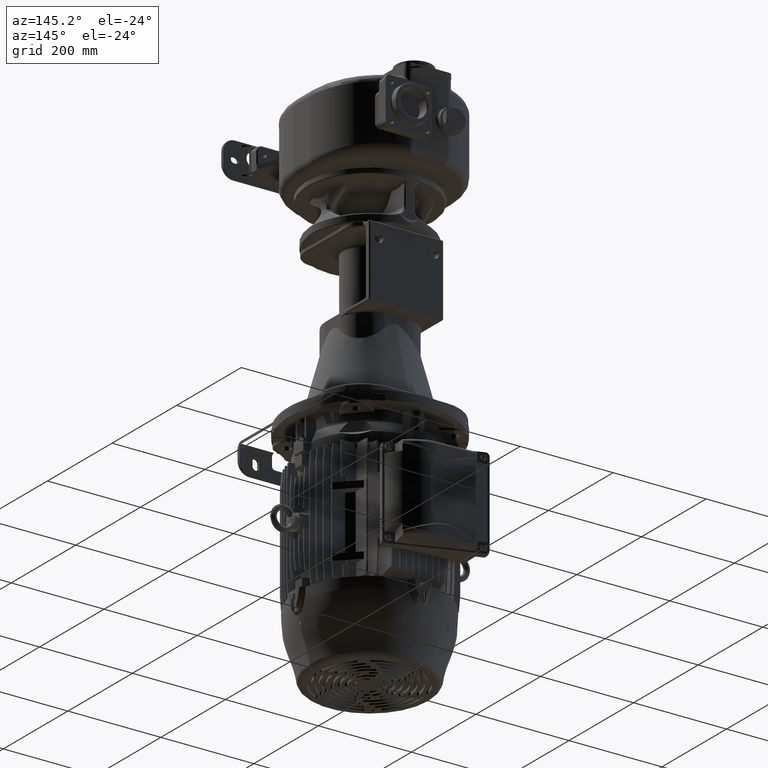
[diagram: clean part render]
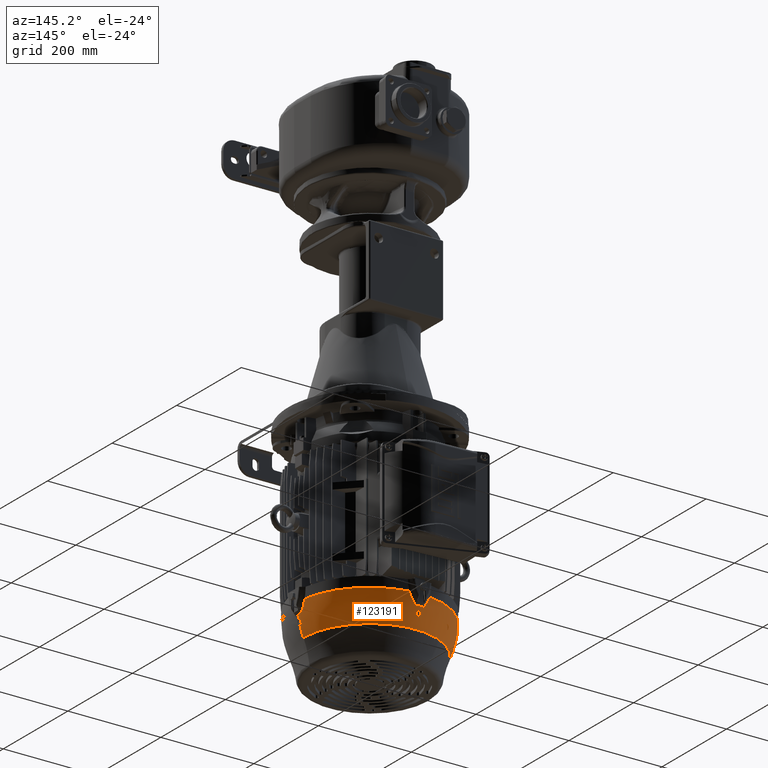
[diagram: same view with one face highlighted and labeled with its STEP entity id]
A machine part, auxiliary view. The second image highlights one B-rep face of the part: STEP entity #123191.
In plain terms, the highlighted face is a freeform B-spline surface patch.
Its self-contained STEP definition (entity closure, byte-faithful):
#34206=CARTESIAN_POINT('',(2.309660939871E1,3.146829410924E2,
-9.265578225722E2));
#34216=CARTESIAN_POINT('',(1.555463572637E2,1.822331932274E2,
-9.265578225722E2));
#34579=CARTESIAN_POINT('',(1.546830150154E2,1.696872819357E2,
-9.493206795141E2));
#34580=CARTESIAN_POINT('',(1.547247066633E2,1.699800036518E2,
-9.489432010325E2));
#34581=CARTESIAN_POINT('',(1.548053359435E2,1.705598074411E2,
-9.481820268905E2));
#34582=CARTESIAN_POINT('',(1.549181215736E2,1.714138280103E2,
-9.470197080510E2));
#34583=CARTESIAN_POINT('',(1.550221794262E2,1.722477758490E2,
-9.458425125548E2));
#34584=CARTESIAN_POINT('',(1.551176398217E2,1.730623417835E2,
-9.446494824438E2));
#34585=CARTESIAN_POINT('',(1.552044721590E2,1.738571149180E2,
-9.434410885665E2));
#34586=CARTESIAN_POINT('',(1.552826334501E2,1.746314082134E2,
-9.422183095364E2));
#34587=CARTESIAN_POINT('',(1.553521457711E2,1.753851458466E2,
-9.409812168783E2));
#34588=CARTESIAN_POINT('',(1.554130004853E2,1.761179319046E2,
-9.397303890820E2));
#34589=CARTESIAN_POINT('',(1.554652082723E2,1.768295545493E2,
-9.384661274752E2));
#34590=CARTESIAN_POINT('',(1.555087732231E2,1.775197285461E2,
-9.371888721492E2));
#34591=CARTESIAN_POINT('',(1.555437000312E2,1.781880977255E2,
-9.358992175637E2));
#34592=CARTESIAN_POINT('',(1.555700002955E2,1.788343339637E2,
-9.345977650893E2));
#34593=CARTESIAN_POINT('',(1.555876947189E2,1.794582265187E2,
-9.332849130819E2));
#34594=CARTESIAN_POINT('',(1.555968054673E2,1.800596235636E2,
-9.319609422182E2));
#34595=CARTESIAN_POINT('',(1.555973520208E2,1.806384384518E2,
-9.306259666704E2));
#34596=CARTESIAN_POINT('',(1.555893481479E2,1.811945056558E2,
-9.292802582639E2));
#34597=CARTESIAN_POINT('',(1.555728113860E2,1.817275174348E2,
-9.279244172069E2));
#34598=CARTESIAN_POINT('',(1.555561170828E2,1.820672417858E2,
-9.270143993035E2));
#34599=CARTESIAN_POINT('',(1.555463572637E2,1.822331932274E2,
-9.265578225722E2));
#34606=CARTESIAN_POINT('',(-2.278002494873E1,1.6E2,-9.210608902496E2));
#34607=DIRECTION('',(0.E0,1.E0,0.E0));
#34608=DIRECTION('',(9.660341785750E-1,0.E0,-2.584143297591E-1));
#34609=AXIS2_PLACEMENT_3D('',#34606,#34607,#34608);
#34611=CARTESIAN_POINT('',(1.511151791804E2,1.649963658915E2,
-9.672297882218E2));
#34612=CARTESIAN_POINT('',(1.511143174761E2,1.647595246944E2,
-9.672626953797E2));
#34613=CARTESIAN_POINT('',(1.511127171724E2,1.642854471716E2,
-9.673238085126E2));
#34614=CARTESIAN_POINT('',(1.511106852824E2,1.635730555316E2,
-9.674014032616E2));
#34615=CARTESIAN_POINT('',(1.511090225051E2,1.628596674699E2,
-9.674649021658E2));
#34616=CARTESIAN_POINT('',(1.511077289848E2,1.621454618143E2,
-9.675142997141E2));
#34617=CARTESIAN_POINT('',(1.511068049165E2,1.614306517377E2,
-9.675495884574E2));
#34618=CARTESIAN_POINT('',(1.511062504220E2,1.607154167584E2,
-9.675707637471E2));
#34619=CARTESIAN_POINT('',(1.511061271948E2,1.602384985348E2,
-9.675754696063E2));
#34620=CARTESIAN_POINT('',(1.511061271948E2,1.6E2,-9.675754696063E2));
#34622=CARTESIAN_POINT('',(1.525524052069E2,1.643952949745E2,
-9.615109804543E2));
#34623=CARTESIAN_POINT('',(1.524032581129E2,1.644623541237E2,
-9.621490056400E2));
#34624=CARTESIAN_POINT('',(1.520979329580E2,1.645962902571E2,
-9.634233228263E2));
#34625=CARTESIAN_POINT('',(1.516188204007E2,1.647966626756E2,
-9.653297390430E2));
#34626=CARTESIAN_POINT('',(1.512853991745E2,1.649298604976E2,
-9.665970316653E2));
#34627=CARTESIAN_POINT('',(1.511151791804E2,1.649963658915E2,
-9.672297882218E2));
#34629=CARTESIAN_POINT('',(-2.278002494873E1,1.6E2,-9.210608902496E2));
#34630=DIRECTION('',(0.E0,1.E0,0.E0));
#34631=DIRECTION('',(9.877699480425E-1,0.E0,-1.559183431931E-1));
#34632=AXIS2_PLACEMENT_3D('',#34629,#34630,#34631);
#34634=CARTESIAN_POINT('',(1.546830150154E2,1.696872819357E2,
-9.493206795141E2));
#34635=CARTESIAN_POINT('',(1.547930415755E2,1.681015420024E2,
-9.492569071972E2));
#34636=CARTESIAN_POINT('',(1.549188863404E2,1.656961412464E2,
-9.491839679208E2));
#34637=CARTESIAN_POINT('',(1.550041300395E2,1.624628042911E2,
-9.491345606062E2));
#34638=CARTESIAN_POINT('',(1.550185657253E2,1.608205831029E2,
-9.491261913332E2));
#34639=CARTESIAN_POINT('',(1.550185658163E2,1.6E2,-9.491261912805E2));
#34641=CARTESIAN_POINT('',(8.634161712655E-1,1.6E2,-9.265578226274E2));
#34642=DIRECTION('',(0.E0,0.E0,-1.E0));
#34643=DIRECTION('',(1.422718546429E-1,9.898276210414E-1,0.E0));
#34644=AXIS2_PLACEMENT_3D('',#34641,#34642,#34643);
#34646=CARTESIAN_POINT('',(1.055069860933E1,3.138195987115E2,
-9.493206801506E2));
#34647=CARTESIAN_POINT('',(1.118748150288E1,3.139106108025E2,
-9.484974989449E2));
#34648=CARTESIAN_POINT('',(1.246860320895E1,3.140838785018E2,
-9.467771751398E2));
#34649=CARTESIAN_POINT('',(1.492184348512E1,3.143747379244E2,
-9.432076194446E2));
#34650=CARTESIAN_POINT('',(1.887248902558E1,3.147295612891E2,
-9.366735491059E2));
#34651=CARTESIAN_POINT('',(2.159233478713E1,3.147711308969E2,
-9.307055073583E2));
#34652=CARTESIAN_POINT('',(2.309660939871E1,3.146829410924E2,
-9.265578225722E2));
#34654=CARTESIAN_POINT('',(-8.823866266774E0,3.138195987111E2,
-9.493206801505E2));
#34655=CARTESIAN_POINT('',(-7.238125625581E0,3.139296253447E2,
-9.492569077911E2));
#34656=CARTESIAN_POINT('',(-4.832726176586E0,3.140554700929E2,
-9.491839681437E2));
#34657=CARTESIAN_POINT('',(-1.598456657445E0,3.141407385631E2,
-9.491345455199E2));
#34658=CARTESIAN_POINT('',(8.662833872833E-1,3.141623793095E2,
-9.491220024001E2));
#34659=CARTESIAN_POINT('',(3.330651630874E0,3.141406403570E2,
-9.491346024410E2));
#34660=CARTESIAN_POINT('',(6.563476935507E0,3.140552939266E2,
-9.491840702511E2));
#34661=CARTESIAN_POINT('',(8.966773073551E0,3.139294994569E2,
-9.492569807570E2));
#34662=CARTESIAN_POINT('',(1.055069860933E1,3.138195987115E2,
-9.493206801506E2));
#34664=CARTESIAN_POINT('',(8.634161712655E-1,1.6E2,-9.265578226274E2));
#34665=DIRECTION('',(0.E0,0.E0,-1.E0));
#34666=DIRECTION('',(-1.E0,0.E0,0.E0));
#34667=AXIS2_PLACEMENT_3D('',#34664,#34665,#34666);
#34669=CARTESIAN_POINT('',(-1.493883468379E2,1.649963658915E2,
-9.672297882218E2));
#34670=CARTESIAN_POINT('',(-1.495585668320E2,1.649298604976E2,
-9.665970316653E2));
#34671=CARTESIAN_POINT('',(-1.498919880581E2,1.647966626756E2,
-9.653297390430E2));
#34672=CARTESIAN_POINT('',(-1.503711006155E2,1.645962902571E2,
-9.634233228263E2));
#34673=CARTESIAN_POINT('',(-1.506764257704E2,1.644623541237E2,
-9.621490056400E2));
#34674=CARTESIAN_POINT('',(-1.508255728644E2,1.643952949745E2,
-9.615109804543E2));
#34676=CARTESIAN_POINT('',(-1.493792948522E2,1.6E2,-9.675754696063E2));
#34677=CARTESIAN_POINT('',(-1.493792948522E2,1.602384985348E2,
-9.675754696063E2));
#34678=CARTESIAN_POINT('',(-1.493794180795E2,1.607154167584E2,
-9.675707637471E2));
#34679=CARTESIAN_POINT('',(-1.493799725740E2,1.614306517377E2,
-9.675495884574E2));
#34680=CARTESIAN_POINT('',(-1.493808966422E2,1.621454618143E2,
-9.675142997141E2));
#34681=CARTESIAN_POINT('',(-1.493821901626E2,1.628596674700E2,
-9.674649021658E2));
#34682=CARTESIAN_POINT('',(-1.493838529399E2,1.635730555316E2,
-9.674014032616E2));
#34683=CARTESIAN_POINT('',(-1.493858848299E2,1.642854471716E2,
-9.673238085126E2));
#34684=CARTESIAN_POINT('',(-1.493874851336E2,1.647595246944E2,
-9.672626953797E2));
#34685=CARTESIAN_POINT('',(-1.493883468379E2,1.649963658915E2,
-9.672297882218E2));
#34687=CARTESIAN_POINT('',(-6.993548746178E1,2.926200275243E2,
-9.672297764429E2));
#34688=CARTESIAN_POINT('',(-7.007819278951E1,2.927341896109E2,
-9.665970198696E2));
#34689=CARTESIAN_POINT('',(-7.036025333233E1,2.929563407879E2,
-9.653297445475E2));
#34690=CARTESIAN_POINT('',(-7.077333834794E1,2.932710787008E2,
-9.634233212535E2));
#34691=CARTESIAN_POINT('',(-7.104199276773E1,2.934685298688E2,
-9.621490056400E2));
#34692=CARTESIAN_POINT('',(-7.117464124151E1,2.935641654665E2,
-9.615109804543E2));
#34694=CARTESIAN_POINT('',(-7.858944509325E1,2.876236610518E2,
-9.672297867060E2));
#34695=CARTESIAN_POINT('',(-7.836808944520E1,2.877503892286E2,
-9.672652257331E2));
#34696=CARTESIAN_POINT('',(-7.792505854011E1,2.880041946280E2,
-9.673306527992E2));
#34697=CARTESIAN_POINT('',(-7.725945479337E1,2.883860074919E2,
-9.674124654097E2));
#34698=CARTESIAN_POINT('',(-7.659309633859E1,2.887687502657E2,
-9.674779293692E2));
#34699=CARTESIAN_POINT('',(-7.592617901642E1,2.891523103153E2,
-9.675270367402E2));
#34700=CARTESIAN_POINT('',(-7.525892807141E1,2.895365577946E2,
-9.675597792242E2));
#34701=CARTESIAN_POINT('',(-7.459156140823E1,2.899213670618E2,
-9.675761517930E2));
#34702=CARTESIAN_POINT('',(-7.392429929615E1,2.903066110233E2,
-9.675761517834E2));
#34703=CARTESIAN_POINT('',(-7.325736134102E1,2.906921628812E2,
-9.675597792444E2));
#34704=CARTESIAN_POINT('',(-7.259096778167E1,2.910778954350E2,
-9.675270366394E2));
#34705=CARTESIAN_POINT('',(-7.192533623569E1,2.914636827614E2,
-9.674779296911E2));
#34706=CARTESIAN_POINT('',(-7.126069231392E1,2.918493948368E2,
-9.674124641123E2));
#34707=CARTESIAN_POINT('',(-7.059722947269E1,2.922349179240E2,
-9.673306574822E2));
#34708=CARTESIAN_POINT('',(-7.015591514384E1,2.924916919763E2,
-9.672652154777E2));
#34709=CARTESIAN_POINT('',(-6.993548746178E1,2.926200275243E2,
-9.672297764429E2));
#34711=CARTESIAN_POINT('',(-7.878751545158E1,2.891688704920E2,
-9.615109804543E2));
#34712=CARTESIAN_POINT('',(-7.877101683139E1,2.890061757451E2,
-9.621490056400E2));
#34713=CARTESIAN_POINT('',(-7.873434634350E1,2.886747883727E2,
-9.634233226239E2));
#34714=CARTESIAN_POINT('',(-7.866831768931E1,2.881596783607E2,
-9.653297397514E2));
#34715=CARTESIAN_POINT('',(-7.861695972539E1,2.878043285811E2,
-9.665970301474E2));
#34716=CARTESIAN_POINT('',(-7.858944509325E1,2.876236610518E2,
-9.672297867060E2));
#34718=CARTESIAN_POINT('',(5.859782062794E0,3.102517630091E2,
-9.672297882218E2));
#34719=CARTESIAN_POINT('',(5.793276668821E0,3.104219830033E2,
-9.665970316653E2));
#34720=CARTESIAN_POINT('',(5.660078846897E0,3.107554042294E2,
-9.653297390430E2));
#34721=CARTESIAN_POINT('',(5.459706428335E0,3.112345167867E2,
-9.634233228263E2));
#34722=CARTESIAN_POINT('',(5.325770294990E0,3.115398419416E2,
-9.621490056400E2));
#34723=CARTESIAN_POINT('',(5.258711145761E0,3.116889890356E2,
-9.615109804543E2));
#34725=CARTESIAN_POINT('',(-4.132949720263E0,3.102517630091E2,
-9.672297882218E2));
#34726=CARTESIAN_POINT('',(-3.877886015530E0,3.102508350055E2,
-9.672652272489E2));
#34727=CARTESIAN_POINT('',(-3.367306949012E0,3.102491217953E2,
-9.673306521101E2));
#34728=CARTESIAN_POINT('',(-2.599970908012E0,3.102469794335E2,
-9.674124656041E2));
#34729=CARTESIAN_POINT('',(-1.831516148803E0,3.102452652057E2,
-9.674779293235E2));
#34730=CARTESIAN_POINT('',(-1.062168814988E0,3.102439792823E2,
-9.675270367553E2));
#34731=CARTESIAN_POINT('',(-2.921888370853E-1,3.102431218907E2,
-9.675597792210E2));
#34732=CARTESIAN_POINT('',(4.781722363111E-1,3.102426931599E2,
-9.675761517912E2));
#34733=CARTESIAN_POINT('',(1.248660106307E0,3.102426931599E2,
-9.675761517912E2));
#34734=CARTESIAN_POINT('',(2.019021179702E0,3.102431218907E2,
-9.675597792210E2));
#34735=CARTESIAN_POINT('',(2.789001157600E0,3.102439792823E2,
-9.675270367553E2));
#34736=CARTESIAN_POINT('',(3.558348491409E0,3.102452652057E2,
-9.674779293235E2));
#34737=CARTESIAN_POINT('',(4.326803250605E0,3.102469794335E2,
-9.674124656041E2));
#34738=CARTESIAN_POINT('',(5.094139291582E0,3.102491217953E2,
-9.673306521101E2));
#34739=CARTESIAN_POINT('',(5.604718358075E0,3.102508350055E2,
-9.672652272489E2));
#34740=CARTESIAN_POINT('',(5.859782062794E0,3.102517630091E2,
-9.672297882218E2));
#34742=CARTESIAN_POINT('',(-3.531878803230E0,3.116889890356E2,
-9.615109804543E2));
#34743=CARTESIAN_POINT('',(-3.598937952460E0,3.115398419416E2,
-9.621490056400E2));
#34744=CARTESIAN_POINT('',(-3.732874085804E0,3.112345167867E2,
-9.634233228263E2));
#34745=CARTESIAN_POINT('',(-3.933246504367E0,3.107554042294E2,
-9.653297390430E2));
#34746=CARTESIAN_POINT('',(-4.066444326290E0,3.104219830033E2,
-9.665970316653E2));
#34747=CARTESIAN_POINT('',(-4.132949720263E0,3.102517630091E2,
-9.672297882218E2));
#34754=CARTESIAN_POINT('',(8.634161712655E-1,1.6E2,-9.903489229696E2));
#34755=DIRECTION('',(0.E0,0.E0,-1.E0));
#34756=DIRECTION('',(-1.E0,0.E0,0.E0));
#34757=AXIS2_PLACEMENT_3D('',#34754,#34755,#34756);
#34769=CARTESIAN_POINT('',(2.450685729126E1,1.6E2,-9.210608902496E2));
#34770=DIRECTION('',(0.E0,-1.E0,0.E0));
#34771=DIRECTION('',(-9.660341785750E-1,0.E0,-2.584143297591E-1));
#34772=AXIS2_PLACEMENT_3D('',#34769,#34770,#34771);
#34783=CARTESIAN_POINT('',(-1.493792948522E2,1.6E2,-9.675754696063E2));
#34792=CARTESIAN_POINT('',(2.450685729126E1,1.6E2,-9.210608902496E2));
#34793=DIRECTION('',(0.E0,-1.E0,0.E0));
#34794=DIRECTION('',(-9.995335908367E-1,0.E0,-3.053851320982E-2));
#34795=AXIS2_PLACEMENT_3D('',#34792,#34793,#34794);
#34833=CARTESIAN_POINT('',(1.550185658163E2,1.6E2,-9.491261912805E2));
#34847=CARTESIAN_POINT('',(1.511061271948E2,1.6E2,-9.675754696063E2));
#34994=CARTESIAN_POINT('',(8.634161712655E-1,1.6E2,-9.5775E2));
#34995=DIRECTION('',(0.E0,0.E0,-1.E0));
#34996=DIRECTION('',(-1.E0,-6.998422790529E-13,0.E0));
#34997=AXIS2_PLACEMENT_3D('',#34994,#34995,#34996);
#35020=CARTESIAN_POINT('',(-1.517141805695E2,1.602183030139E2,-9.5775E2));
#35021=CARTESIAN_POINT('',(-1.517141045073E2,1.602714647973E2,-9.5775E2));
#35022=CARTESIAN_POINT('',(-1.517134764380E2,1.603777952228E2,
-9.577520190080E2));
#35023=CARTESIAN_POINT('',(-1.517111075531E2,1.605370738934E2,
-9.577611016151E2));
#35024=CARTESIAN_POINT('',(-1.517073144348E2,1.606959283666E2,
-9.577762291282E2));
#35025=CARTESIAN_POINT('',(-1.517021011894E2,1.608541432341E2,
-9.577973860510E2));
#35026=CARTESIAN_POINT('',(-1.516954734833E2,1.610115052502E2,
-9.578245505092E2));
#35027=CARTESIAN_POINT('',(-1.516874385641E2,1.611678006602E2,
-9.578576941719E2));
#35028=CARTESIAN_POINT('',(-1.516780052828E2,1.613228159799E2,
-9.578967821489E2));
#35029=CARTESIAN_POINT('',(-1.516671841260E2,1.614763377979E2,
-9.579417728481E2));
#35030=CARTESIAN_POINT('',(-1.516549872432E2,1.616281529952E2,
-9.579926178479E2));
#35031=CARTESIAN_POINT('',(-1.516414285074E2,1.617780484887E2,
-9.580492616350E2));
#35032=CARTESIAN_POINT('',(-1.516265237062E2,1.619258101840E2,
-9.581116407858E2));
#35033=CARTESIAN_POINT('',(-1.516102902587E2,1.620712265627E2,
-9.581796851351E2));
#35034=CARTESIAN_POINT('',(-1.515927474674E2,1.622140863697E2,
-9.582533167067E2));
#35035=CARTESIAN_POINT('',(-1.515739164735E2,1.623541797421E2,
-9.583324498796E2));
#35036=CARTESIAN_POINT('',(-1.515538203457E2,1.624912979977E2,
-9.584169909959E2));
#35037=CARTESIAN_POINT('',(-1.515324840926E2,1.626252341585E2,
-9.585068382868E2));
#35038=CARTESIAN_POINT('',(-1.515099347033E2,1.627557832053E2,
-9.586018816767E2));
#35039=CARTESIAN_POINT('',(-1.514862011975E2,1.628827423531E2,
-9.587020025482E2));
#35040=CARTESIAN_POINT('',(-1.514613146186E2,1.630059116168E2,
-9.588070737438E2));
#35041=CARTESIAN_POINT('',(-1.514353082327E2,1.631250934155E2,
-9.589169586981E2));
#35042=CARTESIAN_POINT('',(-1.514082174660E2,1.632400936559E2,
-9.590315116704E2));
#35043=CARTESIAN_POINT('',(-1.513800795987E2,1.633507234382E2,
-9.591505790077E2));
#35044=CARTESIAN_POINT('',(-1.513509340658E2,1.634567981345E2,
-9.592739978454E2));
#35045=CARTESIAN_POINT('',(-1.513208223123E2,1.635581384831E2,
-9.594015966848E2));
#35046=CARTESIAN_POINT('',(-1.512897878342E2,1.636545708549E2,
-9.595331951887E2));
#35047=CARTESIAN_POINT('',(-1.512578761207E2,1.637459279070E2,
-9.596686043897E2));
#35048=CARTESIAN_POINT('',(-1.512251346001E2,1.638320491535E2,
-9.598076268902E2));
#35049=CARTESIAN_POINT('',(-1.511916125954E2,1.639127815052E2,
-9.599500570130E2));
#35050=CARTESIAN_POINT('',(-1.511573611993E2,1.639879799031E2,
-9.600956813017E2));
#35051=CARTESIAN_POINT('',(-1.511224338304E2,1.640575066843E2,
-9.602442761174E2));
#35052=CARTESIAN_POINT('',(-1.510868849546E2,1.641212347368E2,
-9.603956130452E2));
#35053=CARTESIAN_POINT('',(-1.510507704387E2,1.641790465947E2,
-9.605494573623E2));
#35054=CARTESIAN_POINT('',(-1.510141482192E2,1.642308339443E2,
-9.607055651571E2));
#35055=CARTESIAN_POINT('',(-1.509770760967E2,1.642765010540E2,
-9.608636927001E2));
#35056=CARTESIAN_POINT('',(-1.509396143731E2,1.643159607666E2,
-9.610235851858E2));
#35057=CARTESIAN_POINT('',(-1.509018324742E2,1.643491311834E2,
-9.611849483863E2));
#35058=CARTESIAN_POINT('',(-1.508638027957E2,1.643759470500E2,
-9.613474748213E2));
#35059=CARTESIAN_POINT('',(-1.508383303132E2,1.643895590017E2,
-9.614564063190E2));
#35060=CARTESIAN_POINT('',(-1.508255728644E2,1.643952949745E2,
-9.615109804543E2));
#36459=CARTESIAN_POINT('',(1.546830150154E2,1.696872819357E2,
-9.493206795141E2));
#37403=CARTESIAN_POINT('',(8.634161712655E-1,1.6E2,-9.5775E2));
#37404=DIRECTION('',(0.E0,0.E0,-1.E0));
#37405=DIRECTION('',(9.999989764542E-1,1.430765690163E-3,0.E0));
#37406=AXIS2_PLACEMENT_3D('',#37403,#37404,#37405);
#37416=CARTESIAN_POINT('',(1.525524052069E2,1.643952949745E2,
-9.615109804543E2));
#37417=CARTESIAN_POINT('',(1.525651626447E2,1.643895590067E2,
-9.614564063665E2));
#37418=CARTESIAN_POINT('',(1.525906351093E2,1.643759470689E2,
-9.613474749451E2));
#37419=CARTESIAN_POINT('',(1.526286648181E2,1.643491311821E2,
-9.611849483805E2));
#37420=CARTESIAN_POINT('',(1.526664466707E2,1.643159608070E2,
-9.610235853776E2));
#37421=CARTESIAN_POINT('',(1.527039083727E2,1.642765011301E2,
-9.608636929842E2));
#37422=CARTESIAN_POINT('',(1.527409805096E2,1.642308340145E2,
-9.607055653793E2));
#37423=CARTESIAN_POINT('',(1.527776027474E2,1.641790466463E2,
-9.605494575068E2));
#37424=CARTESIAN_POINT('',(1.528137172660E2,1.641212347902E2,
-9.603956131779E2));
#37425=CARTESIAN_POINT('',(1.528492661772E2,1.640575066810E2,
-9.602442760995E2));
#37426=CARTESIAN_POINT('',(1.528841936037E2,1.639879797728E2,
-9.600956810385E2));
#37427=CARTESIAN_POINT('',(1.529184449296E2,1.639127815204E2,
-9.599500570487E2));
#37428=CARTESIAN_POINT('',(1.529519669311E2,1.638320491842E2,
-9.598076269391E2));
#37429=CARTESIAN_POINT('',(1.529847084770E2,1.637459278714E2,
-9.596686043313E2));
#37430=CARTESIAN_POINT('',(1.530166202172E2,1.636545707364E2,
-9.595331950170E2));
#37431=CARTESIAN_POINT('',(1.530476547154E2,1.635581382885E2,
-9.594015964284E2));
#37432=CARTESIAN_POINT('',(1.530777664730E2,1.634567979082E2,
-9.592739975714E2));
#37433=CARTESIAN_POINT('',(1.531069120008E2,1.633507232122E2,
-9.591505787558E2));
#37434=CARTESIAN_POINT('',(1.531350498480E2,1.632400934911E2,
-9.590315115031E2));
#37435=CARTESIAN_POINT('',(1.531621405824E2,1.631250933815E2,
-9.589169586678E2));
#37436=CARTESIAN_POINT('',(1.531881469741E2,1.630059115593E2,
-9.588070736890E2));
#37437=CARTESIAN_POINT('',(1.532130335971E2,1.628827420644E2,
-9.587020023070E2));
#37438=CARTESIAN_POINT('',(1.532367671250E2,1.627557827680E2,
-9.586018813426E2));
#37439=CARTESIAN_POINT('',(1.532593165369E2,1.626252335489E2,
-9.585068378580E2));
#37440=CARTESIAN_POINT('',(1.532806527980E2,1.624912972808E2,
-9.584169905340E2));
#37441=CARTESIAN_POINT('',(1.533007489137E2,1.623541790429E2,
-9.583324494689E2));
#37442=CARTESIAN_POINT('',(1.533195798808E2,1.622140858149E2,
-9.582533164092E2));
#37443=CARTESIAN_POINT('',(1.533371226581E2,1.620712260748E2,
-9.581796848969E2));
#37444=CARTESIAN_POINT('',(1.533533560858E2,1.619258098301E2,
-9.581116406306E2));
#37445=CARTESIAN_POINT('',(1.533682608808E2,1.617780481707E2,
-9.580492615058E2));
#37446=CARTESIAN_POINT('',(1.533818196323E2,1.616281524550E2,
-9.579926176538E2));
#37447=CARTESIAN_POINT('',(1.533940165095E2,1.614763372562E2,
-9.579417726774E2));
#37448=CARTESIAN_POINT('',(1.534048376754E2,1.613228152304E2,
-9.578967819410E2));
#37449=CARTESIAN_POINT('',(1.534142709622E2,1.611677996776E2,
-9.578576939417E2));
#37450=CARTESIAN_POINT('',(1.534223058751E2,1.610115041928E2,
-9.578245503063E2));
#37451=CARTESIAN_POINT('',(1.534289335671E2,1.608541422838E2,
-9.577973859076E2));
#37452=CARTESIAN_POINT('',(1.534341467974E2,1.606959276301E2,
-9.577762290479E2));
#37453=CARTESIAN_POINT('',(1.534379399017E2,1.605370735244E2,
-9.577611015916E2));
#37454=CARTESIAN_POINT('',(1.534403087808E2,1.603777951432E2,
-9.577520190074E2));
#37455=CARTESIAN_POINT('',(1.534409368499E2,1.602714647875E2,-9.5775E2));
#37456=CARTESIAN_POINT('',(1.534410129120E2,1.602183030139E2,-9.5775E2));
#43691=CARTESIAN_POINT('',(1.055069860933E1,3.138195987115E2,
-9.493206801506E2));
#44761=CARTESIAN_POINT('',(-2.136977705618E1,3.146829410924E2,
-9.265578225722E2));
#44782=CARTESIAN_POINT('',(-8.823866266774E0,3.138195987111E2,
-9.493206801505E2));
#44783=CARTESIAN_POINT('',(-9.116587982896E0,3.138612903590E2,
-9.489432016689E2));
#44784=CARTESIAN_POINT('',(-9.696391036729E0,3.139419198340E2,
-9.481820265951E2));
#44785=CARTESIAN_POINT('',(-1.055041190155E1,3.140547053858E2,
-9.470197081302E2));
#44786=CARTESIAN_POINT('',(-1.138435966096E1,3.141587632593E2,
-9.458425125336E2));
#44787=CARTESIAN_POINT('',(-1.219892561673E1,3.142542236493E2,
-9.446494824495E2));
#44788=CARTESIAN_POINT('',(-1.299369874555E1,3.143410559881E2,
-9.434410885650E2));
#44789=CARTESIAN_POINT('',(-1.376799204247E1,3.144192172787E2,
-9.422183095368E2));
#44790=CARTESIAN_POINT('',(-1.452172967525E1,3.144887295998E2,
-9.409812168782E2));
#44791=CARTESIAN_POINT('',(-1.525451573331E1,3.145495843140E2,
-9.397303890821E2));
#44792=CARTESIAN_POINT('',(-1.596613837803E1,3.146017921011E2,
-9.384661274752E2));
#44793=CARTESIAN_POINT('',(-1.665631237486E1,3.146453570518E2,
-9.371888721493E2));
#44794=CARTESIAN_POINT('',(-1.732468155425E1,3.146802838599E2,
-9.358992175637E2));
#44795=CARTESIAN_POINT('',(-1.797091779241E1,3.147065841242E2,
-9.345977650893E2));
#44796=CARTESIAN_POINT('',(-1.859481034744E1,3.147242785476E2,
-9.332849130819E2));
#44797=CARTESIAN_POINT('',(-1.919620739229E1,3.147333892960E2,
-9.319609422182E2));
#44798=CARTESIAN_POINT('',(-1.977502228051E1,3.147339358496E2,
-9.306259666704E2));
#44799=CARTESIAN_POINT('',(-2.033108948457E1,3.147259319766E2,
-9.292802582639E2));
#44800=CARTESIAN_POINT('',(-2.086410126350E1,3.147093952147E2,
-9.279244172069E2));
#44801=CARTESIAN_POINT('',(-2.120382561454E1,3.146927009116E2,
-9.270143993035E2));
#44802=CARTESIAN_POINT('',(-2.136977705618E1,3.146829410924E2,
-9.265578225722E2));
#44842=CARTESIAN_POINT('',(-8.823866266774E0,3.138195987111E2,
-9.493206801505E2));
#44882=CARTESIAN_POINT('',(-7.878751545158E1,2.891688704920E2,
-9.615109804543E2));
#44883=CARTESIAN_POINT('',(-7.878892667667E1,2.891827867411E2,
-9.614564063665E2));
#44884=CARTESIAN_POINT('',(-7.878987462499E1,2.892116525114E2,
-9.613474749451E2));
#44885=CARTESIAN_POINT('',(-7.878566624026E1,2.892579951487E2,
-9.611849483805E2));
#44886=CARTESIAN_POINT('',(-7.877583077901E1,2.893073003805E2,
-9.610235853776E2));
#44887=CARTESIAN_POINT('',(-7.876038854745E1,2.893594730045E2,
-9.608636929842E2));
#44888=CARTESIAN_POINT('',(-7.873937573367E1,2.894144119747E2,
-9.607055653793E2));
#44889=CARTESIAN_POINT('',(-7.871283767610E1,2.894720214470E2,
-9.605494575068E2));
#44890=CARTESIAN_POINT('',(-7.868082839937E1,2.895322034656E2,
-9.603956131779E2));
#44891=CARTESIAN_POINT('',(-7.864341269348E1,2.895948537803E2,
-9.602442760995E2));
#44892=CARTESIAN_POINT('',(-7.860066433800E1,2.896598652731E2,
-9.600956810385E2));
#44893=CARTESIAN_POINT('',(-7.855266640401E1,2.897271269177E2,
-9.599500570487E2));
#44894=CARTESIAN_POINT('',(-7.849951115077E1,2.897965239907E2,
-9.598076269391E2));
#44895=CARTESIAN_POINT('',(-7.844129867897E1,2.898679396576E2,
-9.596686043313E2));
#44896=CARTESIAN_POINT('',(-7.837813694930E1,2.899412546028E2,
-9.595331950170E2));
#44897=CARTESIAN_POINT('',(-7.831014124886E1,2.900163474905E2,
-9.594015964284E2));
#44898=CARTESIAN_POINT('',(-7.823743378386E1,2.900930952278E2,
-9.592739975714E2));
#44899=CARTESIAN_POINT('',(-7.816014316629E1,2.901713733432E2,
-9.591505787558E2));
#44900=CARTESIAN_POINT('',(-7.807840394106E1,2.902510562943E2,
-9.590315115031E2));
#44901=CARTESIAN_POINT('',(-7.799235629188E1,2.903320176133E2,
-9.589169586678E2));
#44902=CARTESIAN_POINT('',(-7.790214500198E1,2.904141307202E2,
-9.588070736890E2));
#44903=CARTESIAN_POINT('',(-7.780792040196E1,2.904972679154E2,
-9.587020023070E2));
#44904=CARTESIAN_POINT('',(-7.770983718998E1,2.905813014017E2,
-9.586018813426E2));
#44905=CARTESIAN_POINT('',(-7.760805295579E1,2.906661043748E2,
-9.585068378580E2));
#44906=CARTESIAN_POINT('',(-7.750272887564E1,2.907515502529E2,
-9.584169905340E2));
#44907=CARTESIAN_POINT('',(-7.739402905612E1,2.908375131186E2,
-9.583324494689E2));
#44908=CARTESIAN_POINT('',(-7.728212024534E1,2.909238678285E2,
-9.582533164092E2));
#44909=CARTESIAN_POINT('',(-7.716717146985E1,2.910104901894E2,
-9.581796848969E2));
#44910=CARTESIAN_POINT('',(-7.704935402176E1,2.910972568725E2,
-9.581116406306E2));
#44911=CARTESIAN_POINT('',(-7.692884106852E1,2.911840456333E2,
-9.580492615058E2));
#44912=CARTESIAN_POINT('',(-7.680580694649E1,2.912707357144E2,
-9.579926176538E2));
#44913=CARTESIAN_POINT('',(-7.668042956630E1,2.913572061193E2,
-9.579417726774E2));
#44914=CARTESIAN_POINT('',(-7.655288617489E1,2.914433385368E2,
-9.578967819410E2));
#44915=CARTESIAN_POINT('',(-7.642335541152E1,2.915290157792E2,
-9.578576939417E2));
#44916=CARTESIAN_POINT('',(-7.629201700766E1,2.916141219603E2,
-9.578245503063E2));
#44917=CARTESIAN_POINT('',(-7.615905144287E1,2.916985426644E2,
-9.577973859076E2));
#44918=CARTESIAN_POINT('',(-7.602464014869E1,2.917821647811E2,
-9.577762290479E2));
#44919=CARTESIAN_POINT('',(-7.588896500977E1,2.918648767587E2,
-9.577611015916E2));
#44920=CARTESIAN_POINT('',(-7.575221032489E1,2.919465674587E2,
-9.577520190074E2));
#44921=CARTESIAN_POINT('',(-7.566043957028E1,2.920002765603E2,-9.5775E2));
#44922=CARTESIAN_POINT('',(-7.561443815490E1,2.920269233189E2,-9.5775E2));
#44948=CARTESIAN_POINT('',(8.634161712655E-1,1.6E2,-9.5775E2));
#44949=DIRECTION('',(0.E0,0.E0,-1.E0));
#44950=DIRECTION('',(-5.012385676617E-1,8.653091345227E-1,0.E0));
#44951=AXIS2_PLACEMENT_3D('',#44948,#44949,#44950);
#44973=CARTESIAN_POINT('',(-7.523632624330E1,2.922452263328E2,-9.5775E2));
#44974=CARTESIAN_POINT('',(-7.519024875731E1,2.922717413528E2,-9.5775E2));
#44975=CARTESIAN_POINT('',(-7.509784987303E1,2.923243626415E2,
-9.577520190080E2));
#44976=CARTESIAN_POINT('',(-7.495872605550E1,2.924019504624E2,
-9.577611016151E2));
#44977=CARTESIAN_POINT('',(-7.481925748711E1,2.924780927621E2,
-9.577762291282E2));
#44978=CARTESIAN_POINT('',(-7.467963276984E1,2.925526853929E2,
-9.577973860510E2));
#44979=CARTESIAN_POINT('',(-7.454003941327E1,2.926256266391E2,
-9.578245505092E2));
#44980=CARTESIAN_POINT('',(-7.440066615811E1,2.926968158999E2,
-9.578576941719E2));
#44981=CARTESIAN_POINT('',(-7.426170231269E1,2.927661540986E2,
-9.578967821489E2));
#44982=CARTESIAN_POINT('',(-7.412333793985E1,2.928335436108E2,
-9.579417728481E2));
#44983=CARTESIAN_POINT('',(-7.398576368089E1,2.928988883992E2,
-9.579926178479E2));
#44984=CARTESIAN_POINT('',(-7.384917100774E1,2.929620939363E2,
-9.580492616350E2));
#44985=CARTESIAN_POINT('',(-7.371375322525E1,2.930230668475E2,
-9.581116407858E2));
#44986=CARTESIAN_POINT('',(-7.357970222348E1,2.930817164589E2,
-9.581796851351E2));
#44987=CARTESIAN_POINT('',(-7.344721060576E1,2.931379538594E2,
-9.582533167067E2));
#44988=CARTESIAN_POINT('',(-7.331647068938E1,2.931916924265E2,
-9.583324498796E2));
#44989=CARTESIAN_POINT('',(-7.318767473282E1,2.932428477972E2,
-9.584169909959E2));
#44990=CARTESIAN_POINT('',(-7.306101448850E1,2.932913381403E2,
-9.585068382868E2));
#44991=CARTESIAN_POINT('',(-7.293668100289E1,2.933370843197E2,
-9.586018816767E2));
#44992=CARTESIAN_POINT('',(-7.281486440273E1,2.933800100747E2,
-9.587020025482E2));
#44993=CARTESIAN_POINT('',(-7.269575340196E1,2.934200422970E2,
-9.588070737438E2));
#44994=CARTESIAN_POINT('',(-7.257953574372E1,2.934571110055E2,
-9.589169586981E2));
#44995=CARTESIAN_POINT('',(-7.246639723072E1,2.934911498335E2,
-9.590315116704E2));
#44996=CARTESIAN_POINT('',(-7.235652009522E1,2.935220966168E2,
-9.591505790077E2));
#44997=CARTESIAN_POINT('',(-7.225008394700E1,2.935498931931E2,
-9.592739978454E2));
#44998=CARTESIAN_POINT('',(-7.214726475403E1,2.935744858239E2,
-9.594015966848E2));
#44999=CARTESIAN_POINT('',(-7.204823463115E1,2.935958253634E2,
-9.595331951887E2));
#45000=CARTESIAN_POINT('',(-7.195316124649E1,2.936138675349E2,
-9.596686043897E2));
#45001=CARTESIAN_POINT('',(-7.186220729893E1,2.936285731695E2,
-9.598076268902E2));
#45002=CARTESIAN_POINT('',(-7.177553002915E1,2.936399084377E2,
-9.599500570130E2));
#45003=CARTESIAN_POINT('',(-7.169328060811E1,2.936478450575E2,
-9.600956813017E2));
#45004=CARTESIAN_POINT('',(-7.161560496498E1,2.936523604594E2,
-9.602442761174E2));
#45005=CARTESIAN_POINT('',(-7.154264041463E1,2.936534382561E2,
-9.603956130452E2));
#45006=CARTESIAN_POINT('',(-7.147451661909E1,2.936510680969E2,
-9.605494573623E2));
#45007=CARTESIAN_POINT('',(-7.141135634905E1,2.936452459992E2,
-9.607055651571E2));
#45008=CARTESIAN_POINT('',(-7.135327141065E1,2.936359741542E2,
-9.608636927001E2));
#45009=CARTESIAN_POINT('',(-7.130036743531E1,2.936232612061E2,
-9.610235851858E2));
#45010=CARTESIAN_POINT('',(-7.125275006221E1,2.936071263303E2,
-9.611849483863E2));
#45011=CARTESIAN_POINT('',(-7.121051200130E1,2.935875995959E2,
-9.613474748213E2));
#45012=CARTESIAN_POINT('',(-7.118598746405E1,2.935723457549E2,
-9.614564063190E2));
#45013=CARTESIAN_POINT('',(-7.117464124151E1,2.935641654665E2,
-9.615109804543E2));
#45023=CARTESIAN_POINT('',(-3.531878803230E0,3.116889890356E2,
-9.615109804543E2));
#45024=CARTESIAN_POINT('',(-3.526142835469E0,3.117017464734E2,
-9.614564063665E2));
#45025=CARTESIAN_POINT('',(-3.512530897612E0,3.117272189380E2,
-9.613474749451E2));
#45026=CARTESIAN_POINT('',(-3.485715010870E0,3.117652486468E2,
-9.611849483805E2));
#45027=CARTESIAN_POINT('',(-3.452544635699E0,3.118030304994E2,
-9.610235853776E2));
#45028=CARTESIAN_POINT('',(-3.413084958857E0,3.118404922014E2,
-9.608636929842E2));
#45029=CARTESIAN_POINT('',(-3.367417843229E0,3.118775643384E2,
-9.607055653793E2));
#45030=CARTESIAN_POINT('',(-3.315630475062E0,3.119141865761E2,
-9.605494575068E2));
#45031=CARTESIAN_POINT('',(-3.257818618926E0,3.119503010947E2,
-9.603956131779E2));
#45032=CARTESIAN_POINT('',(-3.194090509776E0,3.119858500059E2,
-9.602442760995E2));
#45033=CARTESIAN_POINT('',(-3.124563601568E0,3.120207774324E2,
-9.600956810385E2));
#45034=CARTESIAN_POINT('',(-3.049365349122E0,3.120550287583E2,
-9.599500570487E2));
#45035=CARTESIAN_POINT('',(-2.968633012963E0,3.120885507599E2,
-9.598076269391E2));
#45036=CARTESIAN_POINT('',(-2.882511700111E0,3.121212923058E2,
-9.596686043313E2));
#45037=CARTESIAN_POINT('',(-2.791154565101E0,3.121532040459E2,
-9.595331950170E2));
#45038=CARTESIAN_POINT('',(-2.694722117284E0,3.121842385441E2,
-9.594015964284E2));
#45039=CARTESIAN_POINT('',(-2.593381736926E0,3.122143503018E2,
-9.592739975714E2));
#45040=CARTESIAN_POINT('',(-2.487307040932E0,3.122434958295E2,
-9.591505787558E2));
#45041=CARTESIAN_POINT('',(-2.376677319835E0,3.122716336768E2,
-9.590315115031E2));
#45042=CARTESIAN_POINT('',(-2.261677210231E0,3.122987244111E2,
-9.589169586678E2));
#45043=CARTESIAN_POINT('',(-2.142495387993E0,3.123247308028E2,
-9.588070736890E2));
#45044=CARTESIAN_POINT('',(-2.019325893110E0,3.123496174258E2,
-9.587020023070E2));
#45045=CARTESIAN_POINT('',(-1.892366596687E0,3.123733509538E2,
-9.586018813426E2));
#45046=CARTESIAN_POINT('',(-1.761817377678E0,3.123959003656E2,
-9.585068378580E2));
#45047=CARTESIAN_POINT('',(-1.627881109547E0,3.124172366267E2,
-9.584169905340E2));
#45048=CARTESIAN_POINT('',(-1.490762871610E0,3.124373327424E2,
-9.583324494689E2));
#45049=CARTESIAN_POINT('',(-1.350669643623E0,3.124561637095E2,
-9.582533164092E2));
#45050=CARTESIAN_POINT('',(-1.207809903488E0,3.124737064868E2,
-9.581796848969E2));
#45051=CARTESIAN_POINT('',(-1.062393658874E0,3.124899399145E2,
-9.581116406306E2));
#45052=CARTESIAN_POINT('',(-9.146319994570E-1,3.125048447096E2,
-9.580492615058E2));
#45053=CARTESIAN_POINT('',(-7.647362837205E-1,3.125184034610E2,
-9.579926176538E2));
#45054=CARTESIAN_POINT('',(-6.129210849464E-1,3.125306003383E2,
-9.579417726774E2));
#45055=CARTESIAN_POINT('',(-4.593990591697E-1,3.125414215042E2,
-9.578967819410E2));
#45056=CARTESIAN_POINT('',(-3.043835062916E-1,3.125508547910E2,
-9.578576939417E2));
#45057=CARTESIAN_POINT('',(-1.480880215456E-1,3.125588897038E2,
-9.578245503063E2));
#45058=CARTESIAN_POINT('',(9.273887475375E-3,3.125655173958E2,
-9.577973859076E2));
#45059=CARTESIAN_POINT('',(1.674885411154E-1,3.125707306261E2,
-9.577762290479E2));
#45060=CARTESIAN_POINT('',(3.263426468971E-1,3.125745237305E2,
-9.577611015916E2));
#45061=CARTESIAN_POINT('',(4.856210281045E-1,3.125768926095E2,
-9.577520190074E2));
#45062=CARTESIAN_POINT('',(5.919513837239E-1,3.125775206786E2,-9.5775E2));
#45063=CARTESIAN_POINT('',(6.451131573164E-1,3.125775967407E2,-9.5775E2));
#45089=CARTESIAN_POINT('',(8.634161712655E-1,1.6E2,-9.5775E2));
#45090=DIRECTION('',(0.E0,0.E0,-1.E0));
#45091=DIRECTION('',(-1.430765690175E-3,9.999989764542E-1,0.E0));
#45092=AXIS2_PLACEMENT_3D('',#45089,#45090,#45091);
#45110=CARTESIAN_POINT('',(1.081719185214E0,3.125775967407E2,-9.5775E2));
#45111=CARTESIAN_POINT('',(1.134880968597E0,3.125775206786E2,-9.5775E2));
#45112=CARTESIAN_POINT('',(1.241211394031E0,3.125768926093E2,
-9.577520190080E2));
#45113=CARTESIAN_POINT('',(1.400490064717E0,3.125745237244E2,
-9.577611016151E2));
#45114=CARTESIAN_POINT('',(1.559344537847E0,3.125707306061E2,
-9.577762291282E2));
#45115=CARTESIAN_POINT('',(1.717559405403E0,3.125655173607E2,
-9.577973860510E2));
#45116=CARTESIAN_POINT('',(1.874921421451E0,3.125588896545E2,
-9.578245505092E2));
#45117=CARTESIAN_POINT('',(2.031216831465E0,3.125508547353E2,
-9.578576941719E2));
#45118=CARTESIAN_POINT('',(2.186232151140E0,3.125414214541E2,
-9.578967821489E2));
#45119=CARTESIAN_POINT('',(2.339753969122E0,3.125306002973E2,
-9.579417728481E2));
#45120=CARTESIAN_POINT('',(2.491569166475E0,3.125184034145E2,
-9.579926178479E2));
#45121=CARTESIAN_POINT('',(2.641464659919E0,3.125048446787E2,
-9.580492616350E2));
#45122=CARTESIAN_POINT('',(2.789226355287E0,3.124899398775E2,
-9.581116407858E2));
#45123=CARTESIAN_POINT('',(2.934642733921E0,3.124737064300E2,
-9.581796851351E2));
#45124=CARTESIAN_POINT('',(3.077502540926E0,3.124561636387E2,
-9.582533167067E2));
#45125=CARTESIAN_POINT('',(3.217595913347E0,3.124373326447E2,
-9.583324498796E2));
#45126=CARTESIAN_POINT('',(3.354714168953E0,3.124172365170E2,
-9.584169909959E2));
#45127=CARTESIAN_POINT('',(3.488650329774E0,3.123959002638E2,
-9.585068382868E2));
#45128=CARTESIAN_POINT('',(3.619199376554E0,3.123733508745E2,
-9.586018816767E2));
#45129=CARTESIAN_POINT('',(3.746158524378E0,3.123496173687E2,
-9.587020025482E2));
#45130=CARTESIAN_POINT('',(3.869327788080E0,3.123247307898E2,
-9.588070737438E2));
#45131=CARTESIAN_POINT('',(3.988509586730E0,3.122987244040E2,
-9.589169586981E2));
#45132=CARTESIAN_POINT('',(4.103509827135E0,3.122716336372E2,
-9.590315116704E2));
#45133=CARTESIAN_POINT('',(4.214139609427E0,3.122434957700E2,
-9.591505790077E2));
#45134=CARTESIAN_POINT('',(4.320214305807E0,3.122143502371E2,
-9.592739978454E2));
#45135=CARTESIAN_POINT('',(4.421554654321E0,3.121842384836E2,
-9.594015966848E2));
#45136=CARTESIAN_POINT('',(4.517987026198E0,3.121532040054E2,
-9.595331951887E2));
#45137=CARTESIAN_POINT('',(4.609344078308E0,3.121212922920E2,
-9.596686043897E2));
#45138=CARTESIAN_POINT('',(4.695465324789E0,3.120885507714E2,
-9.598076268902E2));
#45139=CARTESIAN_POINT('',(4.776197676446E0,3.120550287667E2,
-9.599500570130E2));
#45140=CARTESIAN_POINT('',(4.851396074386E0,3.120207773705E2,
-9.600956813017E2));
#45141=CARTESIAN_POINT('',(4.920922855532E0,3.119858500017E2,
-9.602442761174E2));
#45142=CARTESIAN_POINT('',(4.984650908096E0,3.119503011259E2,
-9.603956130452E2));
#45143=CARTESIAN_POINT('',(5.042462766011E0,3.119141866100E2,
-9.605494573623E2));
#45144=CARTESIAN_POINT('',(5.094250115540E0,3.118775643905E2,
-9.607055651571E2));
#45145=CARTESIAN_POINT('',(5.139917225284E0,3.118404922680E2,
-9.608636927001E2));
#45146=CARTESIAN_POINT('',(5.179376937843E0,3.118030305443E2,
-9.610235851858E2));
#45147=CARTESIAN_POINT('',(5.212547354688E0,3.117652486454E2,
-9.611849483863E2));
#45148=CARTESIAN_POINT('',(5.239363221264E0,3.117272189670E2,
-9.613474748213E2));
#45149=CARTESIAN_POINT('',(5.252975173011E0,3.117017464845E2,
-9.614564063190E2));
#45150=CARTESIAN_POINT('',(5.258711145761E0,3.116889890356E2,
-9.615109804543E2));
#66225=CARTESIAN_POINT('',(-7.561443815490E1,2.920269233189E2,-9.5775E2));
#66226=CARTESIAN_POINT('',(-7.523632624330E1,2.922452263328E2,-9.5775E2));
#66227=VERTEX_POINT('',#66225);
#66228=VERTEX_POINT('',#66226);
#66352=CARTESIAN_POINT('',(-1.493883468379E2,1.649963658915E2,
-9.672297882218E2));
#66354=VERTEX_POINT('',#66352);
#66355=CARTESIAN_POINT('',(-1.508255728644E2,1.643952949745E2,
-9.615109804543E2));
#66356=VERTEX_POINT('',#66355);
#66359=CARTESIAN_POINT('',(-7.878751545158E1,2.891688704920E2,
-9.615109804543E2));
#66361=VERTEX_POINT('',#66359);
#66369=CARTESIAN_POINT('',(-1.517141805695E2,1.602183030139E2,-9.5775E2));
#66371=VERTEX_POINT('',#66369);
#66372=CARTESIAN_POINT('',(5.859782062794E0,3.102517630091E2,
-9.672297882218E2));
#66373=VERTEX_POINT('',#66372);
#66374=CARTESIAN_POINT('',(5.258711145761E0,3.116889890356E2,
-9.615109804543E2));
#66375=VERTEX_POINT('',#66374);
#66382=CARTESIAN_POINT('',(1.081719185214E0,3.125775967407E2,-9.5775E2));
#66383=VERTEX_POINT('',#66382);
#66391=CARTESIAN_POINT('',(-3.531878803230E0,3.116889890356E2,
-9.615109804543E2));
#66393=VERTEX_POINT('',#66391);
#66394=CARTESIAN_POINT('',(6.451131573164E-1,3.125775967407E2,-9.5775E2));
#66396=VERTEX_POINT('',#66394);
#66398=CARTESIAN_POINT('',(-4.132949720263E0,3.102517630091E2,
-9.672297882218E2));
#66399=VERTEX_POINT('',#66398);
#66631=VERTEX_POINT('',#34687);
#66632=VERTEX_POINT('',#34692);
#66798=VERTEX_POINT('',#34206);
#66803=VERTEX_POINT('',#34783);
#66808=CARTESIAN_POINT('',(-1.517143367398E2,1.599999999999E2,-9.5775E2));
#66809=VERTEX_POINT('',#66808);
#66813=VERTEX_POINT('',#34216);
#66814=VERTEX_POINT('',#34847);
#66815=VERTEX_POINT('',#34833);
#66819=CARTESIAN_POINT('',(1.534411690823E2,1.599999999999E2,-9.5775E2));
#66820=VERTEX_POINT('',#66819);
#67120=CARTESIAN_POINT('',(1.534410129120E2,1.602183030139E2,-9.5775E2));
#67121=VERTEX_POINT('',#67120);
#67248=CARTESIAN_POINT('',(1.433499498355E2,1.6E2,-9.903489229696E2));
#67249=CARTESIAN_POINT('',(-1.416231174929E2,1.6E2,-9.903489229696E2));
#67250=VERTEX_POINT('',#67248);
#67251=VERTEX_POINT('',#67249);
#67717=VERTEX_POINT('',#43691);
#67719=VERTEX_POINT('',#44761);
#67721=VERTEX_POINT('',#44842);
#67725=VERTEX_POINT('',#36459);
#67756=CARTESIAN_POINT('',(1.511151791804E2,1.649963658915E2,
-9.672297882218E2));
#67758=VERTEX_POINT('',#67756);
#67769=CARTESIAN_POINT('',(1.525524052069E2,1.643952949745E2,
-9.615109804543E2));
#67770=VERTEX_POINT('',#67769);
#67772=CARTESIAN_POINT('',(-7.858944509325E1,2.876236610518E2,
-9.672297867060E2));
#67773=VERTEX_POINT('',#67772);
#67846=CARTESIAN_POINT('',(-1.554091890593E2,1.6E2,-9.265578226274E2));
#67847=VERTEX_POINT('',#67846);
#123095=CARTESIAN_POINT('',(1.425601407543E2,1.510851977219E2,
-9.915584651188E2));
#123096=CARTESIAN_POINT('',(1.515065842766E2,1.505223352046E2,
-9.704989820630E2));
#123097=CARTESIAN_POINT('',(1.563318039969E2,1.502187581115E2,
-9.481275138929E2));
#123098=CARTESIAN_POINT('',(1.568628827668E2,1.501853454674E2,
-9.252457672065E2));
#123099=CARTESIAN_POINT('',(1.480462975715E2,2.382851632720E2,
-9.915584651188E2));
#123100=CARTESIAN_POINT('',(1.573391258973E2,2.432279295491E2,
-9.704989820630E2));
#123101=CARTESIAN_POINT('',(1.623511665350E2,2.458937859035E2,
-9.481275138929E2));
#123102=CARTESIAN_POINT('',(1.629028073992E2,2.461871983895E2,
-9.252457672065E2));
#123103=CARTESIAN_POINT('',(8.823579114505E1,3.019768835312E2,
-9.915584651188E2));
#123104=CARTESIAN_POINT('',(9.375230552041E1,3.109410157206E2,
-9.704989820630E2));
#123105=CARTESIAN_POINT('',(9.672761005183E1,3.157757757355E2,
-9.481275138929E2));
#123106=CARTESIAN_POINT('',(9.705508137172E1,3.163079045400E2,
-9.252457672065E2));
#123107=CARTESIAN_POINT('',(8.634161712653E-1,3.019768835312E2,
-9.915584651188E2));
#123108=CARTESIAN_POINT('',(8.634161712653E-1,3.109410157206E2,
-9.704989820630E2));
#123109=CARTESIAN_POINT('',(8.634161712653E-1,3.157757757355E2,
-9.481275138929E2));
#123110=CARTESIAN_POINT('',(8.634161712653E-1,3.163079045400E2,
-9.252457672065E2));
#123111=CARTESIAN_POINT('',(-8.650895880252E1,3.019768835312E2,
-9.915584651188E2));
#123112=CARTESIAN_POINT('',(-9.202547317788E1,3.109410157206E2,
-9.704989820630E2));
#123113=CARTESIAN_POINT('',(-9.500077770930E1,3.157757757355E2,
-9.481275138929E2));
#123114=CARTESIAN_POINT('',(-9.532824902919E1,3.163079045400E2,
-9.252457672065E2));
#123115=CARTESIAN_POINT('',(-1.463194652289E2,2.382851632720E2,
-9.915584651188E2));
#123116=CARTESIAN_POINT('',(-1.556122935548E2,2.432279295491E2,
-9.704989820630E2));
#123117=CARTESIAN_POINT('',(-1.606243341924E2,2.458937859035E2,
-9.481275138929E2));
#123118=CARTESIAN_POINT('',(-1.611759750566E2,2.461871983895E2,
-9.252457672065E2));
#123119=CARTESIAN_POINT('',(-1.408333084118E2,1.510851977219E2,
-9.915584651188E2));
#123120=CARTESIAN_POINT('',(-1.497797519340E2,1.505223352046E2,
-9.704989820630E2));
#123121=CARTESIAN_POINT('',(-1.546049716544E2,1.502187581115E2,
-9.481275138929E2));
#123122=CARTESIAN_POINT('',(-1.551360504243E2,1.501853454674E2,
-9.252457672065E2));
#123123=(BOUNDED_SURFACE()B_SPLINE_SURFACE(3,3,((#123095,#123096,#123097,
#123098),(#123099,#123100,#123101,#123102),(#123103,#123104,#123105,#123106),(
#123107,#123108,#123109,#123110),(#123111,#123112,#123113,#123114),(#123115,
#123116,#123117,#123118),(#123119,#123120,#123121,#123122)),.UNSPECIFIED.,.F.,
.F.,.F.)B_SPLINE_SURFACE_WITH_KNOTS((4,3,4),(4,4),(0.E0,1.E0,2.E0),(0.E0,1.E0),
.UNSPECIFIED.)GEOMETRIC_REPRESENTATION_ITEM()RATIONAL_B_SPLINE_SURFACE(((
1.197995610844E0,1.183685106377E0,1.183685106377E0,1.197995610844E0),(
9.460548224940E-1,9.347538447268E-1,9.347538447268E-1,9.460548224940E-1),(
9.460548224940E-1,9.347538447268E-1,9.347538447268E-1,9.460548224940E-1),(
1.197995610844E0,1.183685106377E0,1.183685106377E0,1.197995610844E0),(
9.460548224940E-1,9.347538447268E-1,9.347538447268E-1,9.460548224940E-1),(
9.460548224940E-1,9.347538447268E-1,9.347538447268E-1,9.460548224940E-1),(
1.197995610844E0,1.183685106377E0,1.183685106377E0,1.197995610844E0)))REPRESENTATION_ITEM('')SURFACE());
#123125=ORIENTED_EDGE('',*,*,#123124,.T.);
#123127=ORIENTED_EDGE('',*,*,#123126,.F.);
#123129=ORIENTED_EDGE('',*,*,#123128,.F.);
#123131=ORIENTED_EDGE('',*,*,#123130,.F.);
#123133=ORIENTED_EDGE('',*,*,#123132,.T.);
#123135=ORIENTED_EDGE('',*,*,#123134,.T.);
#123137=ORIENTED_EDGE('',*,*,#123136,.F.);
#123139=ORIENTED_EDGE('',*,*,#123138,.F.);
#123140=ORIENTED_EDGE('',*,*,#123086,.T.);
#123141=ORIENTED_EDGE('',*,*,#122619,.F.);
#123143=ORIENTED_EDGE('',*,*,#123142,.F.);
#123145=ORIENTED_EDGE('',*,*,#123144,.F.);
#123147=ORIENTED_EDGE('',*,*,#123146,.T.);
#123148=ORIENTED_EDGE('',*,*,#122747,.F.);
#123150=ORIENTED_EDGE('',*,*,#123149,.T.);
#123152=ORIENTED_EDGE('',*,*,#123151,.T.);
#123154=ORIENTED_EDGE('',*,*,#123153,.T.);
#123156=ORIENTED_EDGE('',*,*,#123155,.F.);
#123158=ORIENTED_EDGE('',*,*,#123157,.F.);
#123160=ORIENTED_EDGE('',*,*,#123159,.T.);
#123161=EDGE_LOOP('',(#123125,#123127,#123129,#123131,#123133,#123135,#123137,
#123139,#123140,#123141,#123143,#123145,#123147,#123148,#123150,#123152,#123154,
#123156,#123158,#123160));
#123162=FACE_OUTER_BOUND('',#123161,.F.);
#123164=ORIENTED_EDGE('',*,*,#123163,.F.);
#123166=ORIENTED_EDGE('',*,*,#123165,.F.);
#123168=ORIENTED_EDGE('',*,*,#123167,.F.);
#123170=ORIENTED_EDGE('',*,*,#123169,.T.);
#123172=ORIENTED_EDGE('',*,*,#123171,.T.);
#123174=ORIENTED_EDGE('',*,*,#123173,.T.);
#123175=EDGE_LOOP('',(#123164,#123166,#123168,#123170,#123172,#123174));
#123176=FACE_BOUND('',#123175,.F.);
#123178=ORIENTED_EDGE('',*,*,#123177,.F.);
#123180=ORIENTED_EDGE('',*,*,#123179,.F.);
#123182=ORIENTED_EDGE('',*,*,#123181,.F.);
#123184=ORIENTED_EDGE('',*,*,#123183,.T.);
#123186=ORIENTED_EDGE('',*,*,#123185,.T.);
#123188=ORIENTED_EDGE('',*,*,#123187,.T.);
#123189=EDGE_LOOP('',(#123178,#123180,#123182,#123184,#123186,#123188));
#123190=FACE_BOUND('',#123189,.F.);
#123191=ADVANCED_FACE('',(#123162,#123176,#123190),#123123,.T.);
#34600=B_SPLINE_CURVE_WITH_KNOTS('',3,(#34579,#34580,#34581,#34582,#34583,
#34584,#34585,#34586,#34587,#34588,#34589,#34590,#34591,#34592,#34593,#34594,
#34595,#34596,#34597,#34598,#34599),.UNSPECIFIED.,.F.,.F.,(4,1,1,1,1,1,1,1,1,1,
1,1,1,1,1,1,1,1,4),(0.E0,5.555555555556E-2,1.111111111111E-1,1.666666666667E-1,
2.222222222222E-1,2.777777777778E-1,3.333333333333E-1,3.888888888889E-1,
4.444444444444E-1,5.E-1,5.555555555556E-1,6.111111111111E-1,6.666666666667E-1,
7.222222222222E-1,7.777777777778E-1,8.333333333333E-1,8.888888888889E-1,
9.444444444444E-1,1.E0),.UNSPECIFIED.);
#34610=CIRCLE('',#34609,1.8E2);
#34621=B_SPLINE_CURVE_WITH_KNOTS('',3,(#34611,#34612,#34613,#34614,#34615,
#34616,#34617,#34618,#34619,#34620),.UNSPECIFIED.,.F.,.F.,(4,1,1,1,1,1,1,4),(
0.E0,1.428571428571E-1,2.857142857143E-1,4.285714285714E-1,5.714285714286E-1,
7.142857142857E-1,8.571428571429E-1,1.E0),.UNSPECIFIED.);
#34628=B_SPLINE_CURVE_WITH_KNOTS('',3,(#34622,#34623,#34624,#34625,#34626,
#34627),.UNSPECIFIED.,.F.,.F.,(4,1,1,4),(0.E0,3.333333333333E-1,
6.666666666667E-1,1.E0),.UNSPECIFIED.);
#34633=CIRCLE('',#34632,1.8E2);
#34640=B_SPLINE_CURVE_WITH_KNOTS('',3,(#34634,#34635,#34636,#34637,#34638,
#34639),.UNSPECIFIED.,.F.,.F.,(4,1,1,4),(0.E0,4.941422006073E-1,
7.472151289024E-1,1.E0),.UNSPECIFIED.);
#34645=CIRCLE('',#34644,1.562726052306E2);
#34653=B_SPLINE_CURVE_WITH_KNOTS('',3,(#34646,#34647,#34648,#34649,#34650,
#34651,#34652),.UNSPECIFIED.,.F.,.F.,(4,1,1,1,4),(0.E0,1.197505693140E-1,
2.455004879812E-1,4.970003253156E-1,1.E0),.UNSPECIFIED.);
#34663=B_SPLINE_CURVE_WITH_KNOTS('',3,(#34654,#34655,#34656,#34657,#34658,
#34659,#34660,#34661,#34662),.UNSPECIFIED.,.F.,.F.,(4,1,1,1,1,1,4),(0.E0,
2.470000064174E-1,3.735000033574E-1,5.000000002974E-1,6.264999972374E-1,
7.529999941773E-1,1.E0),.UNSPECIFIED.);
#34668=CIRCLE('',#34667,1.562726052306E2);
#34675=B_SPLINE_CURVE_WITH_KNOTS('',3,(#34669,#34670,#34671,#34672,#34673,
#34674),.UNSPECIFIED.,.F.,.F.,(4,1,1,4),(0.E0,3.333333333333E-1,
6.666666666667E-1,1.E0),.UNSPECIFIED.);
#34686=B_SPLINE_CURVE_WITH_KNOTS('',3,(#34676,#34677,#34678,#34679,#34680,
#34681,#34682,#34683,#34684,#34685),.UNSPECIFIED.,.F.,.F.,(4,1,1,1,1,1,1,4),(
0.E0,1.428571428571E-1,2.857142857143E-1,4.285714285714E-1,5.714285714286E-1,
7.142857142857E-1,8.571428571429E-1,1.E0),.UNSPECIFIED.);
#34693=B_SPLINE_CURVE_WITH_KNOTS('',3,(#34687,#34688,#34689,#34690,#34691,
#34692),.UNSPECIFIED.,.F.,.F.,(4,1,1,4),(0.E0,3.333333333333E-1,
6.666666666667E-1,1.E0),.UNSPECIFIED.);
#34710=B_SPLINE_CURVE_WITH_KNOTS('',3,(#34694,#34695,#34696,#34697,#34698,
#34699,#34700,#34701,#34702,#34703,#34704,#34705,#34706,#34707,#34708,#34709),
.UNSPECIFIED.,.F.,.F.,(4,1,1,1,1,1,1,1,1,1,1,1,1,4),(0.E0,7.692307692308E-2,
1.538461538462E-1,2.307692307692E-1,3.076923076923E-1,3.846153846154E-1,
4.615384615385E-1,5.384615384615E-1,6.153846153846E-1,6.923076923077E-1,
7.692307692308E-1,8.461538461538E-1,9.230769230769E-1,1.E0),.UNSPECIFIED.);
#34717=B_SPLINE_CURVE_WITH_KNOTS('',3,(#34711,#34712,#34713,#34714,#34715,
#34716),.UNSPECIFIED.,.F.,.F.,(4,1,1,4),(0.E0,3.333333333333E-1,
6.666666666667E-1,1.E0),.UNSPECIFIED.);
#34724=B_SPLINE_CURVE_WITH_KNOTS('',3,(#34718,#34719,#34720,#34721,#34722,
#34723),.UNSPECIFIED.,.F.,.F.,(4,1,1,4),(0.E0,3.333333333333E-1,
6.666666666667E-1,1.E0),.UNSPECIFIED.);
#34741=B_SPLINE_CURVE_WITH_KNOTS('',3,(#34725,#34726,#34727,#34728,#34729,
#34730,#34731,#34732,#34733,#34734,#34735,#34736,#34737,#34738,#34739,#34740),
.UNSPECIFIED.,.F.,.F.,(4,1,1,1,1,1,1,1,1,1,1,1,1,4),(0.E0,7.692307692308E-2,
1.538461538462E-1,2.307692307692E-1,3.076923076923E-1,3.846153846154E-1,
4.615384615385E-1,5.384615384615E-1,6.153846153846E-1,6.923076923077E-1,
7.692307692308E-1,8.461538461538E-1,9.230769230769E-1,1.E0),.UNSPECIFIED.);
#34748=B_SPLINE_CURVE_WITH_KNOTS('',3,(#34742,#34743,#34744,#34745,#34746,
#34747),.UNSPECIFIED.,.F.,.F.,(4,1,1,4),(0.E0,3.333333333333E-1,
6.666666666667E-1,1.E0),.UNSPECIFIED.);
#34758=CIRCLE('',#34757,1.424865336642E2);
#34773=CIRCLE('',#34772,1.8E2);
#34796=CIRCLE('',#34795,1.8E2);
#34998=CIRCLE('',#34997,1.525777529110E2);
#35061=B_SPLINE_CURVE_WITH_KNOTS('',3,(#35020,#35021,#35022,#35023,#35024,
#35025,#35026,#35027,#35028,#35029,#35030,#35031,#35032,#35033,#35034,#35035,
#35036,#35037,#35038,#35039,#35040,#35041,#35042,#35043,#35044,#35045,#35046,
#35047,#35048,#35049,#35050,#35051,#35052,#35053,#35054,#35055,#35056,#35057,
#35058,#35059,#35060),.UNSPECIFIED.,.F.,.F.,(4,1,1,1,1,1,1,1,1,1,1,1,1,1,1,1,1,
1,1,1,1,1,1,1,1,1,1,1,1,1,1,1,1,1,1,1,1,1,4),(0.E0,2.631578947368E-2,
5.263157894737E-2,7.894736842105E-2,1.052631578947E-1,1.315789473684E-1,
1.578947368421E-1,1.842105263158E-1,2.105263157895E-1,2.368421052632E-1,
2.631578947368E-1,2.894736842105E-1,3.157894736842E-1,3.421052631579E-1,
3.684210526316E-1,3.947368421053E-1,4.210526315789E-1,4.473684210526E-1,
4.736842105263E-1,5.E-1,5.263157894737E-1,5.526315789474E-1,5.789473684211E-1,
6.052631578947E-1,6.315789473684E-1,6.578947368421E-1,6.842105263158E-1,
7.105263157895E-1,7.368421052632E-1,7.631578947368E-1,7.894736842105E-1,
8.157894736842E-1,8.421052631579E-1,8.684210526316E-1,8.947368421053E-1,
9.210526315789E-1,9.473684210526E-1,9.736842105263E-1,1.E0),.UNSPECIFIED.);
#37407=CIRCLE('',#37406,1.525777529110E2);
#37457=B_SPLINE_CURVE_WITH_KNOTS('',3,(#37416,#37417,#37418,#37419,#37420,
#37421,#37422,#37423,#37424,#37425,#37426,#37427,#37428,#37429,#37430,#37431,
#37432,#37433,#37434,#37435,#37436,#37437,#37438,#37439,#37440,#37441,#37442,
#37443,#37444,#37445,#37446,#37447,#37448,#37449,#37450,#37451,#37452,#37453,
#37454,#37455,#37456),.UNSPECIFIED.,.F.,.F.,(4,1,1,1,1,1,1,1,1,1,1,1,1,1,1,1,1,
1,1,1,1,1,1,1,1,1,1,1,1,1,1,1,1,1,1,1,1,1,4),(0.E0,2.631578947368E-2,
5.263157894737E-2,7.894736842105E-2,1.052631578947E-1,1.315789473684E-1,
1.578947368421E-1,1.842105263158E-1,2.105263157895E-1,2.368421052632E-1,
2.631578947368E-1,2.894736842105E-1,3.157894736842E-1,3.421052631579E-1,
3.684210526316E-1,3.947368421053E-1,4.210526315789E-1,4.473684210526E-1,
4.736842105263E-1,5.E-1,5.263157894737E-1,5.526315789474E-1,5.789473684211E-1,
6.052631578947E-1,6.315789473684E-1,6.578947368421E-1,6.842105263158E-1,
7.105263157895E-1,7.368421052632E-1,7.631578947368E-1,7.894736842105E-1,
8.157894736842E-1,8.421052631579E-1,8.684210526316E-1,8.947368421053E-1,
9.210526315789E-1,9.473684210526E-1,9.736842105263E-1,1.E0),.UNSPECIFIED.);
#44803=B_SPLINE_CURVE_WITH_KNOTS('',3,(#44782,#44783,#44784,#44785,#44786,
#44787,#44788,#44789,#44790,#44791,#44792,#44793,#44794,#44795,#44796,#44797,
#44798,#44799,#44800,#44801,#44802),.UNSPECIFIED.,.F.,.F.,(4,1,1,1,1,1,1,1,1,1,
1,1,1,1,1,1,1,1,4),(0.E0,5.555555555556E-2,1.111111111111E-1,1.666666666667E-1,
2.222222222222E-1,2.777777777778E-1,3.333333333333E-1,3.888888888889E-1,
4.444444444444E-1,5.E-1,5.555555555556E-1,6.111111111111E-1,6.666666666667E-1,
7.222222222222E-1,7.777777777778E-1,8.333333333333E-1,8.888888888889E-1,
9.444444444444E-1,1.E0),.UNSPECIFIED.);
#44923=B_SPLINE_CURVE_WITH_KNOTS('',3,(#44882,#44883,#44884,#44885,#44886,
#44887,#44888,#44889,#44890,#44891,#44892,#44893,#44894,#44895,#44896,#44897,
#44898,#44899,#44900,#44901,#44902,#44903,#44904,#44905,#44906,#44907,#44908,
#44909,#44910,#44911,#44912,#44913,#44914,#44915,#44916,#44917,#44918,#44919,
#44920,#44921,#44922),.UNSPECIFIED.,.F.,.F.,(4,1,1,1,1,1,1,1,1,1,1,1,1,1,1,1,1,
1,1,1,1,1,1,1,1,1,1,1,1,1,1,1,1,1,1,1,1,1,4),(0.E0,2.631578947368E-2,
5.263157894737E-2,7.894736842105E-2,1.052631578947E-1,1.315789473684E-1,
1.578947368421E-1,1.842105263158E-1,2.105263157895E-1,2.368421052632E-1,
2.631578947368E-1,2.894736842105E-1,3.157894736842E-1,3.421052631579E-1,
3.684210526316E-1,3.947368421053E-1,4.210526315789E-1,4.473684210526E-1,
4.736842105263E-1,5.E-1,5.263157894737E-1,5.526315789474E-1,5.789473684211E-1,
6.052631578947E-1,6.315789473684E-1,6.578947368421E-1,6.842105263158E-1,
7.105263157895E-1,7.368421052632E-1,7.631578947368E-1,7.894736842105E-1,
8.157894736842E-1,8.421052631579E-1,8.684210526316E-1,8.947368421053E-1,
9.210526315789E-1,9.473684210526E-1,9.736842105263E-1,1.E0),.UNSPECIFIED.);
#44952=CIRCLE('',#44951,1.525777529110E2);
#45014=B_SPLINE_CURVE_WITH_KNOTS('',3,(#44973,#44974,#44975,#44976,#44977,
#44978,#44979,#44980,#44981,#44982,#44983,#44984,#44985,#44986,#44987,#44988,
#44989,#44990,#44991,#44992,#44993,#44994,#44995,#44996,#44997,#44998,#44999,
#45000,#45001,#45002,#45003,#45004,#45005,#45006,#45007,#45008,#45009,#45010,
#45011,#45012,#45013),.UNSPECIFIED.,.F.,.F.,(4,1,1,1,1,1,1,1,1,1,1,1,1,1,1,1,1,
1,1,1,1,1,1,1,1,1,1,1,1,1,1,1,1,1,1,1,1,1,4),(0.E0,2.631578947368E-2,
5.263157894737E-2,7.894736842105E-2,1.052631578947E-1,1.315789473684E-1,
1.578947368421E-1,1.842105263158E-1,2.105263157895E-1,2.368421052632E-1,
2.631578947368E-1,2.894736842105E-1,3.157894736842E-1,3.421052631579E-1,
3.684210526316E-1,3.947368421053E-1,4.210526315789E-1,4.473684210526E-1,
4.736842105263E-1,5.E-1,5.263157894737E-1,5.526315789474E-1,5.789473684211E-1,
6.052631578947E-1,6.315789473684E-1,6.578947368421E-1,6.842105263158E-1,
7.105263157895E-1,7.368421052632E-1,7.631578947368E-1,7.894736842105E-1,
8.157894736842E-1,8.421052631579E-1,8.684210526316E-1,8.947368421053E-1,
9.210526315789E-1,9.473684210526E-1,9.736842105263E-1,1.E0),.UNSPECIFIED.);
#45064=B_SPLINE_CURVE_WITH_KNOTS('',3,(#45023,#45024,#45025,#45026,#45027,
#45028,#45029,#45030,#45031,#45032,#45033,#45034,#45035,#45036,#45037,#45038,
#45039,#45040,#45041,#45042,#45043,#45044,#45045,#45046,#45047,#45048,#45049,
#45050,#45051,#45052,#45053,#45054,#45055,#45056,#45057,#45058,#45059,#45060,
#45061,#45062,#45063),.UNSPECIFIED.,.F.,.F.,(4,1,1,1,1,1,1,1,1,1,1,1,1,1,1,1,1,
1,1,1,1,1,1,1,1,1,1,1,1,1,1,1,1,1,1,1,1,1,4),(0.E0,2.631578947368E-2,
5.263157894737E-2,7.894736842105E-2,1.052631578947E-1,1.315789473684E-1,
1.578947368421E-1,1.842105263158E-1,2.105263157895E-1,2.368421052632E-1,
2.631578947368E-1,2.894736842105E-1,3.157894736842E-1,3.421052631579E-1,
3.684210526316E-1,3.947368421053E-1,4.210526315789E-1,4.473684210526E-1,
4.736842105263E-1,5.E-1,5.263157894737E-1,5.526315789474E-1,5.789473684211E-1,
6.052631578947E-1,6.315789473684E-1,6.578947368421E-1,6.842105263158E-1,
7.105263157895E-1,7.368421052632E-1,7.631578947368E-1,7.894736842105E-1,
8.157894736842E-1,8.421052631579E-1,8.684210526316E-1,8.947368421053E-1,
9.210526315789E-1,9.473684210526E-1,9.736842105263E-1,1.E0),.UNSPECIFIED.);
#45093=CIRCLE('',#45092,1.525777529110E2);
#45151=B_SPLINE_CURVE_WITH_KNOTS('',3,(#45110,#45111,#45112,#45113,#45114,
#45115,#45116,#45117,#45118,#45119,#45120,#45121,#45122,#45123,#45124,#45125,
#45126,#45127,#45128,#45129,#45130,#45131,#45132,#45133,#45134,#45135,#45136,
#45137,#45138,#45139,#45140,#45141,#45142,#45143,#45144,#45145,#45146,#45147,
#45148,#45149,#45150),.UNSPECIFIED.,.F.,.F.,(4,1,1,1,1,1,1,1,1,1,1,1,1,1,1,1,1,
1,1,1,1,1,1,1,1,1,1,1,1,1,1,1,1,1,1,1,1,1,4),(0.E0,2.631578947368E-2,
5.263157894737E-2,7.894736842105E-2,1.052631578947E-1,1.315789473684E-1,
1.578947368421E-1,1.842105263158E-1,2.105263157895E-1,2.368421052632E-1,
2.631578947368E-1,2.894736842105E-1,3.157894736842E-1,3.421052631579E-1,
3.684210526316E-1,3.947368421053E-1,4.210526315789E-1,4.473684210526E-1,
4.736842105263E-1,5.E-1,5.263157894737E-1,5.526315789474E-1,5.789473684211E-1,
6.052631578947E-1,6.315789473684E-1,6.578947368421E-1,6.842105263158E-1,
7.105263157895E-1,7.368421052632E-1,7.631578947368E-1,7.894736842105E-1,
8.157894736842E-1,8.421052631579E-1,8.684210526316E-1,8.947368421053E-1,
9.210526315789E-1,9.473684210526E-1,9.736842105263E-1,1.E0),.UNSPECIFIED.);
#122619=EDGE_CURVE('',#66798,#66813,#34645,.T.);
#122747=EDGE_CURVE('',#67847,#67719,#34668,.T.);
#123086=EDGE_CURVE('',#67725,#66813,#34600,.T.);
#123124=EDGE_CURVE('',#67251,#67250,#34758,.T.);
#123126=EDGE_CURVE('',#66814,#67250,#34610,.T.);
#123128=EDGE_CURVE('',#67758,#66814,#34621,.T.);
#123130=EDGE_CURVE('',#67770,#67758,#34628,.T.);
#123132=EDGE_CURVE('',#67770,#67121,#37457,.T.);
#123134=EDGE_CURVE('',#67121,#66820,#37407,.T.);
#123136=EDGE_CURVE('',#66815,#66820,#34633,.T.);
#123138=EDGE_CURVE('',#67725,#66815,#34640,.T.);
#123142=EDGE_CURVE('',#67717,#66798,#34653,.T.);
#123144=EDGE_CURVE('',#67721,#67717,#34663,.T.);
#123146=EDGE_CURVE('',#67721,#67719,#44803,.T.);
#123149=EDGE_CURVE('',#67847,#66809,#34796,.T.);
#123151=EDGE_CURVE('',#66809,#66371,#34998,.T.);
#123153=EDGE_CURVE('',#66371,#66356,#35061,.T.);
#123155=EDGE_CURVE('',#66354,#66356,#34675,.T.);
#123157=EDGE_CURVE('',#66803,#66354,#34686,.T.);
#123159=EDGE_CURVE('',#66803,#67251,#34773,.T.);
#123163=EDGE_CURVE('',#66631,#66632,#34693,.T.);
#123165=EDGE_CURVE('',#67773,#66631,#34710,.T.);
#123167=EDGE_CURVE('',#66361,#67773,#34717,.T.);
#123169=EDGE_CURVE('',#66361,#66227,#44923,.T.);
#123171=EDGE_CURVE('',#66227,#66228,#44952,.T.);
#123173=EDGE_CURVE('',#66228,#66632,#45014,.T.);
#123177=EDGE_CURVE('',#66373,#66375,#34724,.T.);
#123179=EDGE_CURVE('',#66399,#66373,#34741,.T.);
#123181=EDGE_CURVE('',#66393,#66399,#34748,.T.);
#123183=EDGE_CURVE('',#66393,#66396,#45064,.T.);
#123185=EDGE_CURVE('',#66396,#66383,#45093,.T.);
#123187=EDGE_CURVE('',#66383,#66375,#45151,.T.);